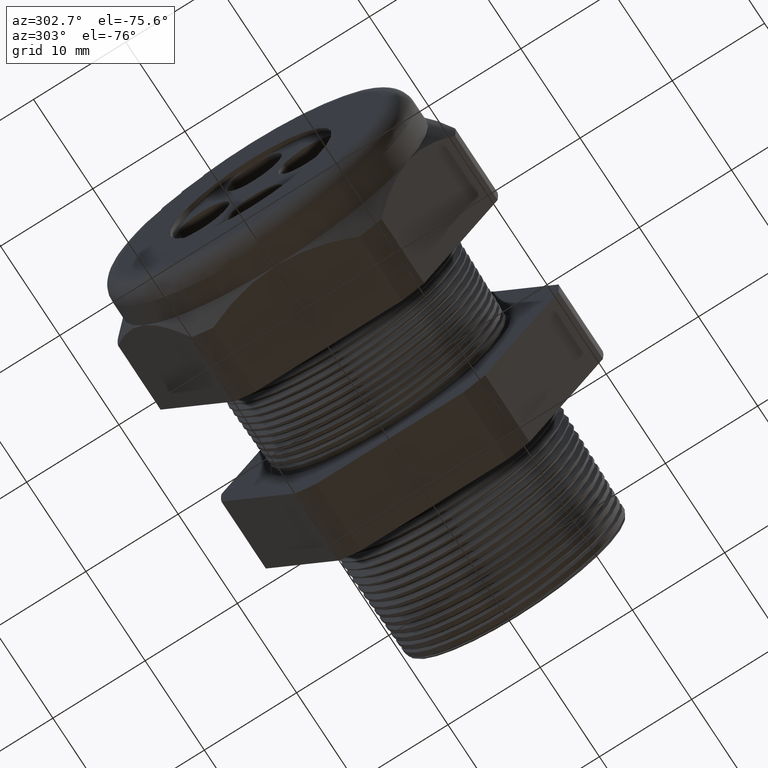
[diagram: clean part render]
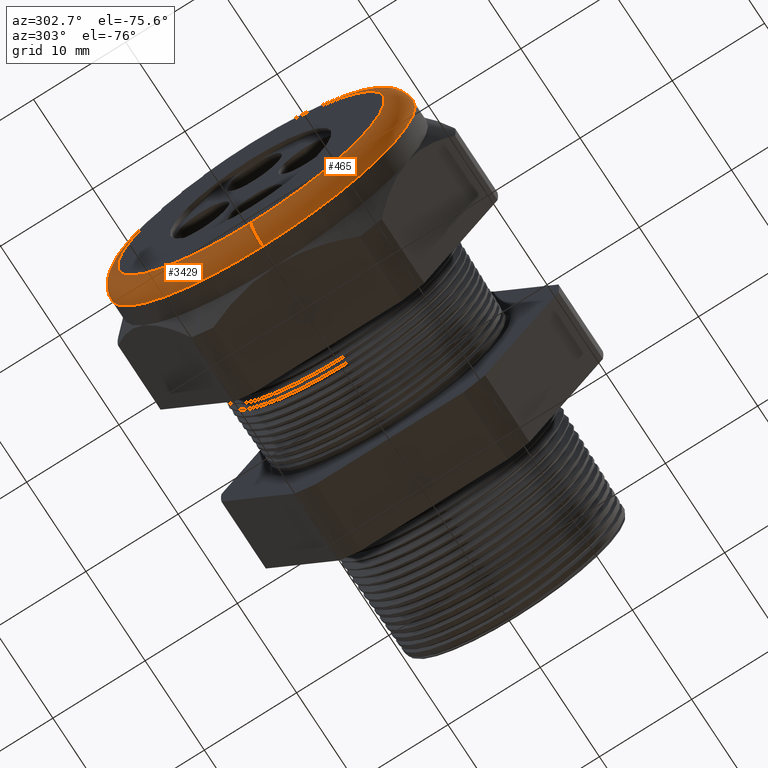
[diagram: same view with one multi-face feature highlighted, each face labeled with its STEP entity id]
A machine part, auxiliary view. The highlighted faces form ONE feature: a constant-radius fillet chain: 2 tangent blend faces with common blend radius 2.032 mm. The faces share edges in the B-rep.
Their STEP definitions:
[1] entity #3429 (Torus):
#3413 = ORIENTED_EDGE ( 'NONE', *, *, #3414, .F. ) ;
#3414 = EDGE_CURVE ( 'NONE', #3423, #3416, #3977, .T. ) ;
#3416 = VERTEX_POINT ( 'NONE', #3972 ) ;
#3417 = ORIENTED_EDGE ( 'NONE', *, *, #3418, .F. ) ;
#3418 = EDGE_CURVE ( 'NONE', #3416, #3420, #3970, .T. ) ;
#3420 = VERTEX_POINT ( 'NONE', #3960 ) ;
#3421 = ORIENTED_EDGE ( 'NONE', *, *, #3422, .F. ) ;
#3422 = EDGE_CURVE ( 'NONE', #3427, #3423, #3959, .T. ) ;
#3423 = VERTEX_POINT ( 'NONE', #3954 ) ;
#3424 = EDGE_LOOP ( 'NONE', ( #3421, #3425, #3417, #3413 ) ) ;
#3425 = ORIENTED_EDGE ( 'NONE', *, *, #3426, .T. ) ;
#3426 = EDGE_CURVE ( 'NONE', #3427, #3420, #3953, .T. ) ;
#3427 = VERTEX_POINT ( 'NONE', #4017 ) ;
#3429 = ADVANCED_FACE ( 'NONE', ( #4016 ), #4015, .T. ) ;
#3951 = CARTESIAN_POINT ( 'NONE',  ( -1.449999999999999700, 6.980486755139912600E-017, -0.5699999999999999500 ) ) ;
#3952 = AXIS2_PLACEMENT_3D ( 'NONE', #3951, #4019, #4018 ) ;
#3953 = CIRCLE ( 'NONE', #3952, 0.07999999999999996000 ) ;
#3954 = CARTESIAN_POINT ( 'NONE',  ( -1.449999999999999700, 7.960204194457794200E-017, 0.6499999999999999100 ) ) ;
#3955 = DIRECTION ( 'NONE',  ( 0.0000000000000000000, 0.0000000000000000000, 1.000000000000000000 ) ) ;
#3956 = DIRECTION ( 'NONE',  ( 1.000000000000000000, 0.0000000000000000000, 0.0000000000000000000 ) ) ;
#3957 = CARTESIAN_POINT ( 'NONE',  ( -1.449999999999999700, 0.0000000000000000000, 0.0000000000000000000 ) ) ;
#3958 = AXIS2_PLACEMENT_3D ( 'NONE', #3957, #3956, #3955 ) ;
#3959 = CIRCLE ( 'NONE', #3958, 0.6499999999999999100 ) ;
#3960 = CARTESIAN_POINT ( 'NONE',  ( -1.529999999999999800, 7.470345474798854000E-017, -0.5699999999999999500 ) ) ;
#3966 = DIRECTION ( 'NONE',  ( 0.0000000000000000000, 0.0000000000000000000, 1.000000000000000000 ) ) ;
#3967 = DIRECTION ( 'NONE',  ( -1.000000000000000000, 0.0000000000000000000, 0.0000000000000000000 ) ) ;
#3968 = CARTESIAN_POINT ( 'NONE',  ( -1.529999999999999800, 0.0000000000000000000, 0.0000000000000000000 ) ) ;
#3969 = AXIS2_PLACEMENT_3D ( 'NONE', #3968, #3967, #3966 ) ;
#3970 = CIRCLE ( 'NONE', #3969, 0.5699999999999999500 ) ;
#3972 = CARTESIAN_POINT ( 'NONE',  ( -1.529999999999999800, 0.0000000000000000000, 0.5699999999999999500 ) ) ;
#3973 = DIRECTION ( 'NONE',  ( 0.0000000000000000000, 0.0000000000000000000, -1.000000000000000000 ) ) ;
#3974 = DIRECTION ( 'NONE',  ( 0.0000000000000000000, -1.000000000000000000, 0.0000000000000000000 ) ) ;
#3975 = CARTESIAN_POINT ( 'NONE',  ( -1.449999999999999700, 0.0000000000000000000, 0.5699999999999999500 ) ) ;
#3976 = AXIS2_PLACEMENT_3D ( 'NONE', #3975, #3974, #3973 ) ;
#3977 = CIRCLE ( 'NONE', #3976, 0.07999999999999996000 ) ;
#4010 = DIRECTION ( 'NONE',  ( 0.0000000000000000000, 0.0000000000000000000, 1.000000000000000000 ) ) ;
#4011 = DIRECTION ( 'NONE',  ( -1.000000000000000000, 0.0000000000000000000, 0.0000000000000000000 ) ) ;
#4012 = CARTESIAN_POINT ( 'NONE',  ( -1.449999999999999700, 0.0000000000000000000, 0.0000000000000000000 ) ) ;
#4013 = AXIS2_PLACEMENT_3D ( 'NONE', #4012, #4011, #4010 ) ;
#4015 = TOROIDAL_SURFACE ( 'NONE', #4013, 0.5699999999999999500, 0.08000000000000000200 ) ;
#4016 = FACE_OUTER_BOUND ( 'NONE', #3424, .T. ) ;
#4017 = CARTESIAN_POINT ( 'NONE',  ( -1.449999999999999700, 0.0000000000000000000, -0.6499999999999999100 ) ) ;
#4018 = DIRECTION ( 'NONE',  ( 0.0000000000000000000, -1.224646799147353900E-016, 1.000000000000000000 ) ) ;
#4019 = DIRECTION ( 'NONE',  ( 0.0000000000000000000, 1.000000000000000000, 1.224646799147353200E-016 ) ) ;
[2] entity #465 (Torus):
#465 = ADVANCED_FACE ( 'NONE', ( #2221 ), #2220, .T. ) ;
#466 = EDGE_LOOP ( 'NONE', ( #467, #468, #469, #470 ) ) ;
#467 = ORIENTED_EDGE ( 'NONE', *, *, #3426, .F. ) ;
#468 = ORIENTED_EDGE ( 'NONE', *, *, #1336, .F. ) ;
#469 = ORIENTED_EDGE ( 'NONE', *, *, #3414, .T. ) ;
#470 = ORIENTED_EDGE ( 'NONE', *, *, #5858, .F. ) ;
#1336 = EDGE_CURVE ( 'NONE', #3423, #3427, #3949, .T. ) ;
#2220 = TOROIDAL_SURFACE ( 'NONE', #2283, 0.5699999999999999500, 0.08000000000000000200 ) ;
#2221 = FACE_OUTER_BOUND ( 'NONE', #466, .T. ) ;
#2280 = DIRECTION ( 'NONE',  ( 0.0000000000000000000, 0.0000000000000000000, 1.000000000000000000 ) ) ;
#2281 = DIRECTION ( 'NONE',  ( -1.000000000000000000, 0.0000000000000000000, 0.0000000000000000000 ) ) ;
#2282 = CARTESIAN_POINT ( 'NONE',  ( -1.449999999999999700, 0.0000000000000000000, 0.0000000000000000000 ) ) ;
#2283 = AXIS2_PLACEMENT_3D ( 'NONE', #2282, #2281, #2280 ) ;
#3414 = EDGE_CURVE ( 'NONE', #3423, #3416, #3977, .T. ) ;
#3416 = VERTEX_POINT ( 'NONE', #3972 ) ;
#3420 = VERTEX_POINT ( 'NONE', #3960 ) ;
#3423 = VERTEX_POINT ( 'NONE', #3954 ) ;
#3426 = EDGE_CURVE ( 'NONE', #3427, #3420, #3953, .T. ) ;
#3427 = VERTEX_POINT ( 'NONE', #4017 ) ;
#3945 = DIRECTION ( 'NONE',  ( 0.0000000000000000000, 0.0000000000000000000, 1.000000000000000000 ) ) ;
#3946 = DIRECTION ( 'NONE',  ( 1.000000000000000000, 0.0000000000000000000, 0.0000000000000000000 ) ) ;
#3947 = CARTESIAN_POINT ( 'NONE',  ( -1.449999999999999700, 0.0000000000000000000, 0.0000000000000000000 ) ) ;
#3948 = AXIS2_PLACEMENT_3D ( 'NONE', #3947, #3946, #3945 ) ;
#3949 = CIRCLE ( 'NONE', #3948, 0.6499999999999999100 ) ;
#3951 = CARTESIAN_POINT ( 'NONE',  ( -1.449999999999999700, 6.980486755139912600E-017, -0.5699999999999999500 ) ) ;
#3952 = AXIS2_PLACEMENT_3D ( 'NONE', #3951, #4019, #4018 ) ;
#3953 = CIRCLE ( 'NONE', #3952, 0.07999999999999996000 ) ;
#3954 = CARTESIAN_POINT ( 'NONE',  ( -1.449999999999999700, 7.960204194457794200E-017, 0.6499999999999999100 ) ) ;
#3960 = CARTESIAN_POINT ( 'NONE',  ( -1.529999999999999800, 7.470345474798854000E-017, -0.5699999999999999500 ) ) ;
#3972 = CARTESIAN_POINT ( 'NONE',  ( -1.529999999999999800, 0.0000000000000000000, 0.5699999999999999500 ) ) ;
#3973 = DIRECTION ( 'NONE',  ( 0.0000000000000000000, 0.0000000000000000000, -1.000000000000000000 ) ) ;
#3974 = DIRECTION ( 'NONE',  ( 0.0000000000000000000, -1.000000000000000000, 0.0000000000000000000 ) ) ;
#3975 = CARTESIAN_POINT ( 'NONE',  ( -1.449999999999999700, 0.0000000000000000000, 0.5699999999999999500 ) ) ;
#3976 = AXIS2_PLACEMENT_3D ( 'NONE', #3975, #3974, #3973 ) ;
#3977 = CIRCLE ( 'NONE', #3976, 0.07999999999999996000 ) ;
#4017 = CARTESIAN_POINT ( 'NONE',  ( -1.449999999999999700, 0.0000000000000000000, -0.6499999999999999100 ) ) ;
#4018 = DIRECTION ( 'NONE',  ( 0.0000000000000000000, -1.224646799147353900E-016, 1.000000000000000000 ) ) ;
#4019 = DIRECTION ( 'NONE',  ( 0.0000000000000000000, 1.000000000000000000, 1.224646799147353200E-016 ) ) ;
#4749 = DIRECTION ( 'NONE',  ( 0.0000000000000000000, 0.0000000000000000000, 1.000000000000000000 ) ) ;
#4750 = DIRECTION ( 'NONE',  ( -1.000000000000000000, 0.0000000000000000000, 0.0000000000000000000 ) ) ;
#4751 = CARTESIAN_POINT ( 'NONE',  ( -1.529999999999999800, 0.0000000000000000000, 0.0000000000000000000 ) ) ;
#4752 = AXIS2_PLACEMENT_3D ( 'NONE', #4751, #4750, #4749 ) ;
#4753 = CIRCLE ( 'NONE', #4752, 0.5699999999999999500 ) ;
#5858 = EDGE_CURVE ( 'NONE', #3420, #3416, #4753, .T. ) ;